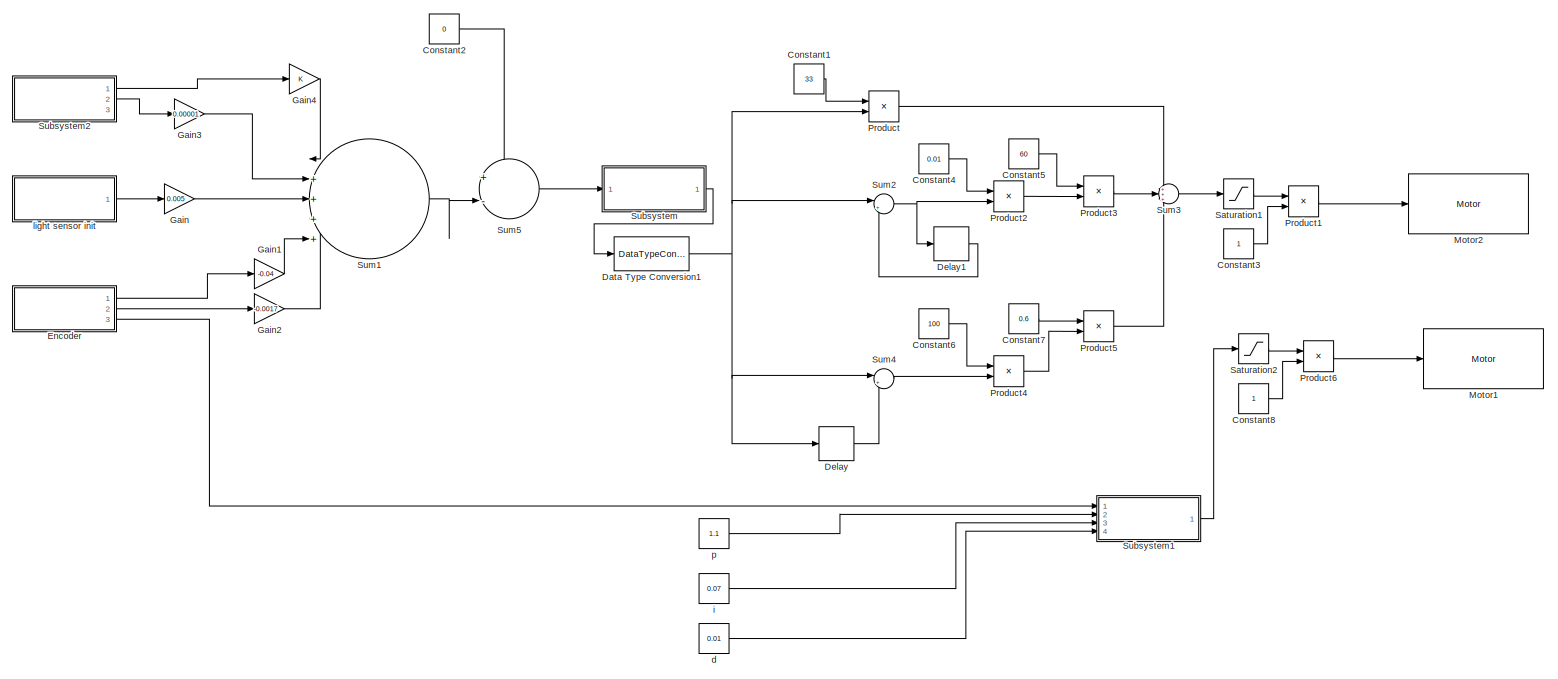
[diagram: root canvas - part 1/1, most of the canvas]
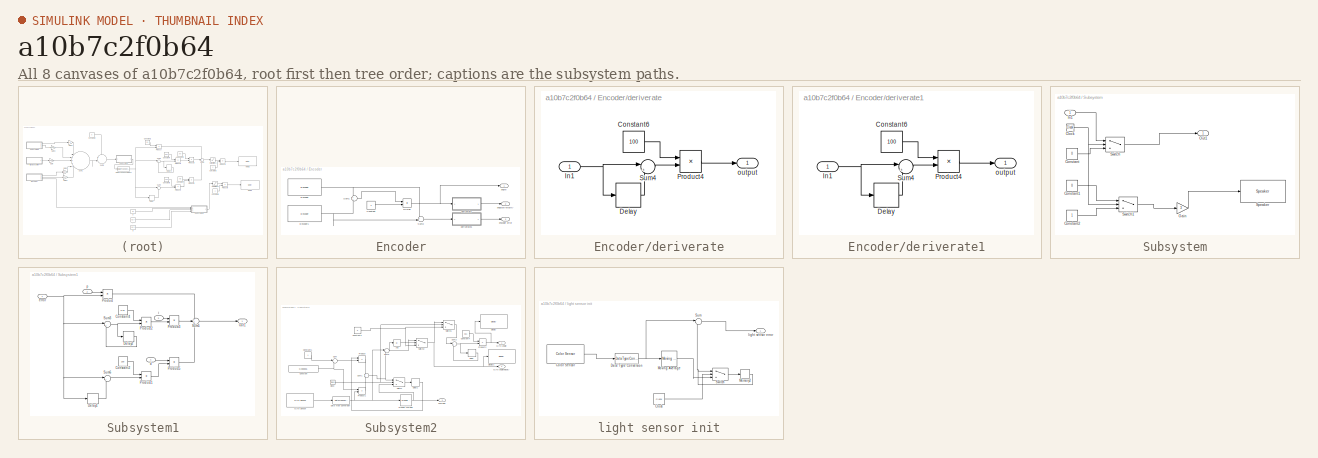
[diagram: thumbnail index - all 8 canvases of the model, root first then tree order]
MODEL slx_a10b7c2f0b64
KIND model
CONFIG AbsTol = auto
CONFIG EnableMultiTasking = on
CONFIG FixedStep = auto
CONFIG MaxStep = auto
CONFIG MinStep = auto
CONFIG RelTol = 1e-3
CONFIG SampleTimeConstraint = Unconstrained
CONFIG Solver = FixedStepAuto
CONFIG SolverName = FixedStepAuto
CONFIG StartTime = 0.0
CONFIG StopTime = 10.0
BLOCK [Constant] Constant1
  Value = 33
BLOCK [Constant] Constant2
  Value = 0
BLOCK [Constant] Constant3
BLOCK [Constant] Constant4
  Value = 0.01
BLOCK [Constant] Constant5
  Value = 60
BLOCK [Constant] Constant6
  Value = 100
BLOCK [Constant] Constant7
  Value = 0.6
BLOCK [Constant] Constant8
BLOCK [DataTypeConversion] Data Type Conversion1
  OutDataTypeStr = double
  RndMeth = Floor
  SaturateOnIntegerOverflow = off
BLOCK [Delay] Delay
  DelayLength = 1
  InitialCondition = 0
  InputPortMap = u0
  Ports = [1, 1]
BLOCK [Delay] Delay1
  DelayLength = 1
  InitialCondition = 0
  InputPortMap = u0
  Ports = [1, 1]
BLOCK [SubSystem] Encoder
  Ports = [0, 3]
  RequestExecContextInheritance = off
BLOCK [Constant] Encoder/Constant
  Value = 2
BLOCK [Product] Encoder/Divide
  InputSameDT = off
  Inputs = */
  OutDataTypeStr = Inherit: Inherit via internal rule
  Ports = [2, 1]
  RndMeth = Floor
  SaturateOnIntegerOverflow = off
BLOCK [Reference] Encoder/Encoder  REF=legoev3lib/Encoder
  Ports = [1, 1]
  SourceBlock = legoev3lib/Encoder
  SourceProductBaseCode = LEGOEV3
  SourceProductName = Simulink Support Package for LEGO MINDSTORMS EV3 Hardware
  SourceType = LEGO MINDSTORMS EV3 Encoder
BLOCK [Reference] Encoder/Encoder1  REF=legoev3lib/Encoder
  Ports = [1, 1]
  SourceBlock = legoev3lib/Encoder
  SourceProductBaseCode = LEGOEV3
  SourceProductName = Simulink Support Package for LEGO MINDSTORMS EV3 Hardware
  SourceType = LEGO MINDSTORMS EV3 Encoder
BLOCK [Sum] Encoder/Sum1
  IconShape = round
  InputSameDT = off
  OutDataTypeStr = Inherit: Inherit via internal rule
  Ports = [2, 1]
  SaturateOnIntegerOverflow = off
BLOCK [Sum] Encoder/Sum2
  IconShape = round
  InputSameDT = off
  Inputs = +-
  OutDataTypeStr = Inherit: Inherit via internal rule
  Ports = [2, 1]
  SaturateOnIntegerOverflow = off
BLOCK [Outport] Encoder/angle
  IconDisplay = Port number
BLOCK [Outport] Encoder/angularVelocity
  IconDisplay = Port number
  Port = 2
BLOCK [SubSystem] Encoder/deriverate
  Ports = [1, 1]
  RequestExecContextInheritance = off
BLOCK [Constant] Encoder/deriverate/Constant6
  Value = 100
BLOCK [Delay] Encoder/deriverate/Delay
  DelayLength = 1
  InitialCondition = 0
  InputPortMap = u0
  Ports = [1, 1]
BLOCK [Inport] Encoder/deriverate/In1
  IconDisplay = Port number
BLOCK [Product] Encoder/deriverate/Product4
  InputSameDT = off
  OutDataTypeStr = Inherit: Inherit via internal rule
  Ports = [2, 1]
  RndMeth = Floor
  SaturateOnIntegerOverflow = off
BLOCK [Sum] Encoder/deriverate/Sum4
  IconShape = round
  InputSameDT = off
  Inputs = |+-
  OutDataTypeStr = Inherit: Inherit via internal rule
  Ports = [2, 1]
  SaturateOnIntegerOverflow = off
BLOCK [Outport] Encoder/deriverate/output
  IconDisplay = Port number
BLOCK [SubSystem] Encoder/deriverate1
  Ports = [1, 1]
  RequestExecContextInheritance = off
BLOCK [Constant] Encoder/deriverate1/Constant6
  Value = 100
BLOCK [Delay] Encoder/deriverate1/Delay
  DelayLength = 1
  InitialCondition = 0
  InputPortMap = u0
  Ports = [1, 1]
BLOCK [Inport] Encoder/deriverate1/In1
  IconDisplay = Port number
BLOCK [Product] Encoder/deriverate1/Product4
  InputSameDT = off
  OutDataTypeStr = Inherit: Inherit via internal rule
  Ports = [2, 1]
  RndMeth = Floor
  SaturateOnIntegerOverflow = off
BLOCK [Sum] Encoder/deriverate1/Sum4
  IconShape = round
  InputSameDT = off
  Inputs = |+-
  OutDataTypeStr = Inherit: Inherit via internal rule
  Ports = [2, 1]
  SaturateOnIntegerOverflow = off
BLOCK [Outport] Encoder/deriverate1/output
  IconDisplay = Port number
BLOCK [Outport] Encoder/encoder error
  IconDisplay = Port number
  Port = 3
BLOCK [Gain] Gain
  Gain = 0.005
  OutDataTypeStr = Inherit: Inherit via internal rule
  ParamDataTypeStr = Inherit: Inherit via internal rule
  SaturateOnIntegerOverflow = off
BLOCK [Gain] Gain1
  Gain = -0.04
  OutDataTypeStr = Inherit: Inherit via internal rule
  ParamDataTypeStr = Inherit: Inherit via internal rule
  SaturateOnIntegerOverflow = off
BLOCK [Gain] Gain2
  Gain = -0.0017
  OutDataTypeStr = Inherit: Inherit via internal rule
  ParamDataTypeStr = Inherit: Inherit via internal rule
  SaturateOnIntegerOverflow = off
BLOCK [Gain] Gain3
  Gain = 0.00001
  OutDataTypeStr = Inherit: Inherit via internal rule
  ParamDataTypeStr = Inherit: Inherit via internal rule
  SaturateOnIntegerOverflow = off
BLOCK [Gain] Gain4
  OutDataTypeStr = Inherit: Inherit via internal rule
  ParamDataTypeStr = Inherit: Inherit via internal rule
  SaturateOnIntegerOverflow = off
BLOCK [Reference] Motor1  REF=legoev3lib/Motor
  Ports = [1]
  SourceBlock = legoev3lib/Motor
  SourceProductBaseCode = LEGOEV3
  SourceProductName = Simulink Support Package for LEGO MINDSTORMS EV3 Hardware
  SourceType = LEGO MINDSTORMS EV3 Motor
BLOCK [Reference] Motor2  REF=legoev3lib/Motor
  Ports = [1]
  SourceBlock = legoev3lib/Motor
  SourceProductBaseCode = LEGOEV3
  SourceProductName = Simulink Support Package for LEGO MINDSTORMS EV3 Hardware
  SourceType = LEGO MINDSTORMS EV3 Motor
BLOCK [Product] Product
  InputSameDT = off
  OutDataTypeStr = Inherit: Inherit via internal rule
  Ports = [2, 1]
  RndMeth = Floor
  SaturateOnIntegerOverflow = off
BLOCK [Product] Product1
  InputSameDT = off
  OutDataTypeStr = Inherit: Inherit via internal rule
  Ports = [2, 1]
  RndMeth = Floor
  SaturateOnIntegerOverflow = off
BLOCK [Product] Product2
  InputSameDT = off
  OutDataTypeStr = Inherit: Inherit via internal rule
  Ports = [2, 1]
  RndMeth = Floor
  SaturateOnIntegerOverflow = off
BLOCK [Product] Product3
  InputSameDT = off
  OutDataTypeStr = Inherit: Inherit via internal rule
  Ports = [2, 1]
  RndMeth = Floor
  SaturateOnIntegerOverflow = off
BLOCK [Product] Product4
  InputSameDT = off
  OutDataTypeStr = Inherit: Inherit via internal rule
  Ports = [2, 1]
  RndMeth = Floor
  SaturateOnIntegerOverflow = off
BLOCK [Product] Product5
  InputSameDT = off
  OutDataTypeStr = Inherit: Inherit via internal rule
  Ports = [2, 1]
  RndMeth = Floor
  SaturateOnIntegerOverflow = off
BLOCK [Product] Product6
  InputSameDT = off
  OutDataTypeStr = Inherit: Inherit via internal rule
  Ports = [2, 1]
  RndMeth = Floor
  SaturateOnIntegerOverflow = off
BLOCK [Saturate] Saturation1
  InputPortMap = u0
  LowerLimit = -100
  Ports = [1, 1]
  UpperLimit = 100
BLOCK [Saturate] Saturation2
  InputPortMap = u0
  LowerLimit = -100
  Ports = [1, 1]
  UpperLimit = 100
BLOCK [SubSystem] Subsystem
  Ports = [1, 1]
  RequestExecContextInheritance = off
BLOCK [Clock] Subsystem/Clock
BLOCK [Constant] Subsystem/Constant
  Value = 0
BLOCK [Constant] Subsystem/Constant1
  Value = 0
BLOCK [Constant] Subsystem/Constant2
BLOCK [Gain] Subsystem/Gain
  Gain = 3
  OutDataTypeStr = Inherit: Inherit via internal rule
  ParamDataTypeStr = Inherit: Inherit via internal rule
  SaturateOnIntegerOverflow = off
BLOCK [Inport] Subsystem/In1
  IconDisplay = Port number
BLOCK [Outport] Subsystem/Out1
  IconDisplay = Port number
BLOCK [Reference] Subsystem/Speaker  REF=legoev3lib/Speaker
  Ports = [1]
  SourceBlock = legoev3lib/Speaker
  SourceProductBaseCode = LEGOEV3
  SourceProductName = Simulink Support Package for LEGO MINDSTORMS EV3 Hardware
  SourceType = LEGO MINDSTORMS EV3 Speaker
BLOCK [Switch] Subsystem/Switch
  Criteria = u2 > Threshold
  InputSameDT = off
  SaturateOnIntegerOverflow = off
  Threshold = 5
BLOCK [Switch] Subsystem/Switch1
  Criteria = u2 > Threshold
  InputSameDT = off
  SaturateOnIntegerOverflow = off
  Threshold = 5
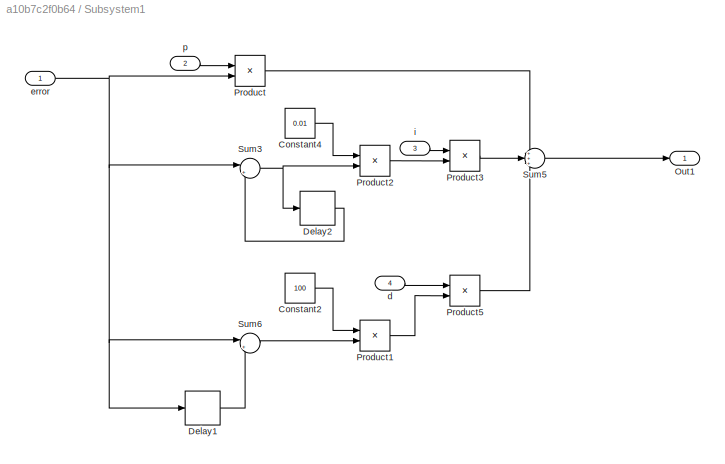
BLOCK [SubSystem] Subsystem1
  Ports = [4, 1]
  RequestExecContextInheritance = off
BLOCK [Constant] Subsystem1/Constant2
  Value = 100
BLOCK [Constant] Subsystem1/Constant4
  Value = 0.01
BLOCK [Delay] Subsystem1/Delay1
  DelayLength = 1
  InitialCondition = 0
  InputPortMap = u0
  Ports = [1, 1]
BLOCK [Delay] Subsystem1/Delay2
  DelayLength = 1
  InitialCondition = 0
  InputPortMap = u0
  Ports = [1, 1]
BLOCK [Outport] Subsystem1/Out1
  IconDisplay = Port number
BLOCK [Product] Subsystem1/Product
  InputSameDT = off
  OutDataTypeStr = Inherit: Inherit via internal rule
  Ports = [2, 1]
  RndMeth = Floor
  SaturateOnIntegerOverflow = off
BLOCK [Product] Subsystem1/Product1
  InputSameDT = off
  OutDataTypeStr = Inherit: Inherit via internal rule
  Ports = [2, 1]
  RndMeth = Floor
  SaturateOnIntegerOverflow = off
BLOCK [Product] Subsystem1/Product2
  InputSameDT = off
  OutDataTypeStr = Inherit: Inherit via internal rule
  Ports = [2, 1]
  RndMeth = Floor
  SaturateOnIntegerOverflow = off
BLOCK [Product] Subsystem1/Product3
  InputSameDT = off
  OutDataTypeStr = Inherit: Inherit via internal rule
  Ports = [2, 1]
  RndMeth = Floor
  SaturateOnIntegerOverflow = off
BLOCK [Product] Subsystem1/Product5
  InputSameDT = off
  OutDataTypeStr = Inherit: Inherit via internal rule
  Ports = [2, 1]
  RndMeth = Floor
  SaturateOnIntegerOverflow = off
BLOCK [Sum] Subsystem1/Sum3
  IconShape = round
  InputSameDT = off
  Inputs = |++
  OutDataTypeStr = Inherit: Inherit via internal rule
  Ports = [2, 1]
  SaturateOnIntegerOverflow = off
BLOCK [Sum] Subsystem1/Sum5
  IconShape = round
  InputSameDT = off
  Inputs = +++
  OutDataTypeStr = Inherit: Inherit via internal rule
  Ports = [3, 1]
  SaturateOnIntegerOverflow = off
BLOCK [Sum] Subsystem1/Sum6
  IconShape = round
  InputSameDT = off
  Inputs = |+-
  OutDataTypeStr = Inherit: Inherit via internal rule
  Ports = [2, 1]
  SaturateOnIntegerOverflow = off
BLOCK [Inport] Subsystem1/d
  IconDisplay = Port number
  Port = 4
BLOCK [Inport] Subsystem1/error
  IconDisplay = Port number
BLOCK [Inport] Subsystem1/i
  IconDisplay = Port number
  Port = 3
BLOCK [Inport] Subsystem1/p
  IconDisplay = Port number
  Port = 2
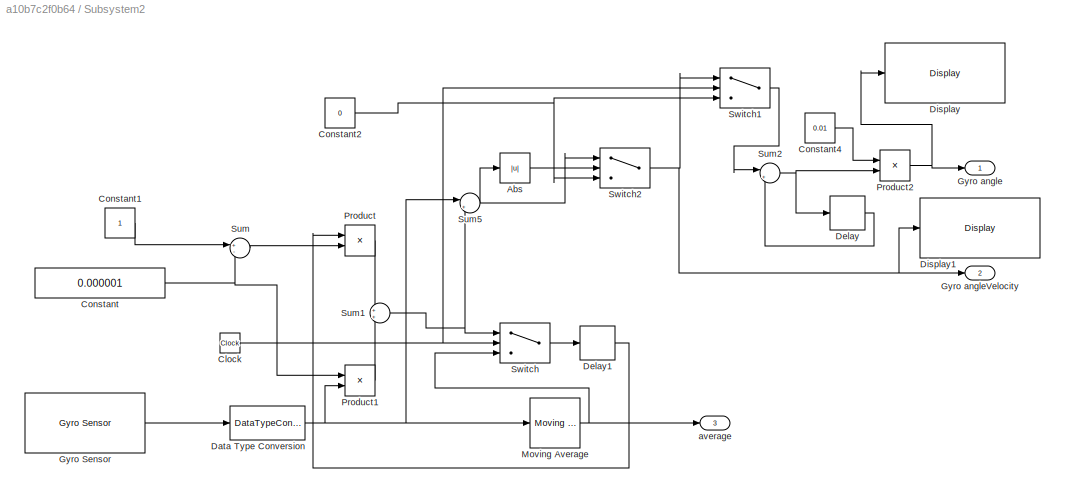
BLOCK [SubSystem] Subsystem2
  Ports = [0, 3]
  RequestExecContextInheritance = off
BLOCK [Abs] Subsystem2/Abs
  SaturateOnIntegerOverflow = off
BLOCK [Clock] Subsystem2/Clock
BLOCK [Constant] Subsystem2/Constant
  Value = 0.000001
BLOCK [Constant] Subsystem2/Constant1
BLOCK [Constant] Subsystem2/Constant2
  Value = 0
BLOCK [Constant] Subsystem2/Constant4
  Value = 0.01
BLOCK [DataTypeConversion] Subsystem2/Data Type Conversion
  OutDataTypeStr = double
  RndMeth = Floor
  SaturateOnIntegerOverflow = off
BLOCK [Delay] Subsystem2/Delay
  DelayLength = 1
  InitialCondition = 0
  InputPortMap = u0
  Ports = [1, 1]
BLOCK [Delay] Subsystem2/Delay1
  DelayLength = 1
  InitialCondition = 0
  InputPortMap = u0
  Ports = [1, 1]
BLOCK [Reference] Subsystem2/Display  REF=legoev3lib/Display
  Ports = [1]
  SourceBlock = legoev3lib/Display
  SourceProductBaseCode = LEGOEV3
  SourceProductName = Simulink Support Package for LEGO MINDSTORMS EV3 Hardware
  SourceType = LEGO MINDSTORMS EV3 Display
BLOCK [Reference] Subsystem2/Display1  REF=legoev3lib/Display
  Ports = [1]
  SourceBlock = legoev3lib/Display
  SourceProductBaseCode = LEGOEV3
  SourceProductName = Simulink Support Package for LEGO MINDSTORMS EV3 Hardware
  SourceType = LEGO MINDSTORMS EV3 Display
BLOCK [Reference] Subsystem2/Gyro Sensor  REF=legoev3lib/Gyro Sensor
  Ports = [0, 1]
  SourceBlock = legoev3lib/Gyro Sensor
  SourceProductBaseCode = LEGOEV3
  SourceProductName = Simulink Support Package for LEGO MINDSTORMS EV3 Hardware
  SourceType = LEGO MINDSTORMS EV3 Gyro Sensor
BLOCK [Outport] Subsystem2/Gyro angle
  IconDisplay = Port number
BLOCK [Outport] Subsystem2/Gyro angleVelocity
  IconDisplay = Port number
  Port = 2
BLOCK [Reference] Subsystem2/Moving Average  REF=dspstat3/Moving
Average
  Ports = [1, 1]
  SourceBlock = dspstat3/Moving\nAverage
  SourceProductBaseCode = DS
  SourceProductName = DSP System Toolbox
  SourceType = dsp.simulink.MovingAverage
BLOCK [Product] Subsystem2/Product
  InputSameDT = off
  OutDataTypeStr = Inherit: Inherit via internal rule
  Ports = [2, 1]
  RndMeth = Floor
  SaturateOnIntegerOverflow = off
BLOCK [Product] Subsystem2/Product1
  InputSameDT = off
  OutDataTypeStr = Inherit: Inherit via internal rule
  Ports = [2, 1]
  RndMeth = Floor
  SaturateOnIntegerOverflow = off
BLOCK [Product] Subsystem2/Product2
  InputSameDT = off
  OutDataTypeStr = Inherit: Inherit via internal rule
  Ports = [2, 1]
  RndMeth = Floor
  SaturateOnIntegerOverflow = off
BLOCK [Sum] Subsystem2/Sum
  IconShape = round
  InputSameDT = off
  Inputs = +-
  OutDataTypeStr = Inherit: Inherit via internal rule
  Ports = [2, 1]
  SaturateOnIntegerOverflow = off
BLOCK [Sum] Subsystem2/Sum1
  IconShape = round
  InputSameDT = off
  OutDataTypeStr = Inherit: Inherit via internal rule
  Ports = [2, 1]
  SaturateOnIntegerOverflow = off
BLOCK [Sum] Subsystem2/Sum2
  IconShape = round
  InputSameDT = off
  Inputs = |++
  OutDataTypeStr = Inherit: Inherit via internal rule
  Ports = [2, 1]
  SaturateOnIntegerOverflow = off
BLOCK [Sum] Subsystem2/Sum5
  IconShape = round
  InputSameDT = off
  Inputs = |+-
  OutDataTypeStr = Inherit: Inherit via internal rule
  Ports = [2, 1]
  SaturateOnIntegerOverflow = off
BLOCK [Switch] Subsystem2/Switch
  Criteria = u2 > Threshold
  InputSameDT = off
  SaturateOnIntegerOverflow = off
  Threshold = 5
BLOCK [Switch] Subsystem2/Switch1
  Criteria = u2 > Threshold
  InputSameDT = off
  SaturateOnIntegerOverflow = off
  Threshold = 5
BLOCK [Switch] Subsystem2/Switch2
  Criteria = u2 > Threshold
  InputSameDT = off
  SaturateOnIntegerOverflow = off
  Threshold = 1.5
BLOCK [Outport] Subsystem2/average
  IconDisplay = Port number
  Port = 3
BLOCK [Sum] Sum1
  IconShape = round
  InputSameDT = off
  Inputs = |+++++
  OutDataTypeStr = Inherit: Inherit via internal rule
  Ports = [5, 1]
  SaturateOnIntegerOverflow = off
BLOCK [Sum] Sum2
  IconShape = round
  InputSameDT = off
  Inputs = |++
  OutDataTypeStr = Inherit: Inherit via internal rule
  Ports = [2, 1]
  SaturateOnIntegerOverflow = off
BLOCK [Sum] Sum3
  IconShape = round
  InputSameDT = off
  Inputs = +++
  OutDataTypeStr = Inherit: Inherit via internal rule
  Ports = [3, 1]
  SaturateOnIntegerOverflow = off
BLOCK [Sum] Sum4
  IconShape = round
  InputSameDT = off
  Inputs = |+-
  OutDataTypeStr = Inherit: Inherit via internal rule
  Ports = [2, 1]
  SaturateOnIntegerOverflow = off
BLOCK [Sum] Sum5
  IconShape = round
  InputSameDT = off
  Inputs = +-
  OutDataTypeStr = Inherit: Inherit via internal rule
  Ports = [2, 1]
  SaturateOnIntegerOverflow = off
BLOCK [Constant] d
  Value = 0.01
BLOCK [Constant] i
  Value = 0.07
BLOCK [SubSystem] light sensor init
  Ports = [0, 1]
  RequestExecContextInheritance = off
BLOCK [Clock] light sensor init/Clock
BLOCK [Reference] light sensor init/Color Sensor  REF=legoev3lib/Color Sensor
  Ports = [0, 1]
  SourceBlock = legoev3lib/Color Sensor
  SourceProductBaseCode = LEGOEV3
  SourceProductName = Simulink Support Package for LEGO MINDSTORMS EV3 Hardware
  SourceType = LEGO MINDSTORMS EV3 Color Sensor
BLOCK [DataTypeConversion] light sensor init/Data Type Conversion
  OutDataTypeStr = double
  RndMeth = Floor
  SaturateOnIntegerOverflow = off
BLOCK [Memory] light sensor init/Memory2
BLOCK [Reference] light sensor init/Moving Average  REF=dspstat3/Moving
Average
  Ports = [1, 1]
  SourceBlock = dspstat3/Moving\nAverage
  SourceProductBaseCode = DS
  SourceProductName = DSP System Toolbox
  SourceType = dsp.simulink.MovingAverage
BLOCK [Sum] light sensor init/Sum
  IconShape = round
  InputSameDT = off
  Inputs = |-+
  OutDataTypeStr = Inherit: Inherit via internal rule
  Ports = [2, 1]
  SaturateOnIntegerOverflow = off
BLOCK [Switch] light sensor init/Switch
  Criteria = u2 > Threshold
  InputSameDT = off
  SaturateOnIntegerOverflow = off
  Threshold = 5
BLOCK [Outport] light sensor init/light sensor error
  IconDisplay = Port number
BLOCK [Constant] p
  Value = 1.1
LINE Constant1:1 -> Product:1
LINE Constant2:1 -> Sum5:1
LINE Constant3:1 -> Product1:2
LINE Constant4:1 -> Product2:1
LINE Constant5:1 -> Product3:1
LINE Constant6:1 -> Product4:1
LINE Constant7:1 -> Product5:1
LINE Constant8:1 -> Product6:2
NET Data Type Conversion1:1 -> Delay:1, Product:2, Sum2:1, Sum4:1
LINE Delay1:1 -> Sum2:2
LINE Delay:1 -> Sum4:2
LINE Encoder/Constant:1 -> Encoder/Divide:2
NET Encoder/Divide:1 -> Encoder/angle:1, Encoder/deriverate:1
NET Encoder/Encoder1:1 -> Encoder/Sum1:2, Encoder/Sum2:2
NET Encoder/Encoder:1 -> Encoder/Sum1:1, Encoder/Sum2:1
LINE Encoder/Sum1:1 -> Encoder/Divide:1
LINE Encoder/Sum2:1 -> Encoder/deriverate1:1
LINE Encoder/deriverate/Constant6:1 -> Encoder/deriverate/Product4:1
LINE Encoder/deriverate/Delay:1 -> Encoder/deriverate/Sum4:2
NET Encoder/deriverate/In1:1 -> Encoder/deriverate/Delay:1, Encoder/deriverate/Sum4:1
LINE Encoder/deriverate/Product4:1 -> Encoder/deriverate/output:1
LINE Encoder/deriverate/Sum4:1 -> Encoder/deriverate/Product4:2
LINE Encoder/deriverate1/Constant6:1 -> Encoder/deriverate1/Product4:1
LINE Encoder/deriverate1/Delay:1 -> Encoder/deriverate1/Sum4:2
NET Encoder/deriverate1/In1:1 -> Encoder/deriverate1/Delay:1, Encoder/deriverate1/Sum4:1
LINE Encoder/deriverate1/Product4:1 -> Encoder/deriverate1/output:1
LINE Encoder/deriverate1/Sum4:1 -> Encoder/deriverate1/Product4:2
LINE Encoder/deriverate1:1 -> Encoder/encoder error:1
LINE Encoder/deriverate:1 -> Encoder/angularVelocity:1
LINE Encoder:1 -> Gain1:1
LINE Encoder:2 -> Gain2:1
LINE Encoder:3 -> Subsystem1:1
LINE Gain1:1 -> Sum1:5
LINE Gain2:1 -> Sum1:4
LINE Gain3:1 -> Sum1:2
LINE Gain4:1 -> Sum1:1
LINE Gain:1 -> Sum1:3
LINE Product1:1 -> Motor2:1
LINE Product2:1 -> Product3:2
LINE Product3:1 -> Sum3:2
LINE Product4:1 -> Product5:2
LINE Product5:1 -> Sum3:3
LINE Product6:1 -> Motor1:1
LINE Product:1 -> Sum3:1
LINE Saturation1:1 -> Product1:1
LINE Saturation2:1 -> Product6:1
NET Subsystem/Clock:1 -> Subsystem/Switch1:2, Subsystem/Switch:2
LINE Subsystem/Constant1:1 -> Subsystem/Switch1:1
LINE Subsystem/Constant2:1 -> Subsystem/Switch1:3
LINE Subsystem/Constant:1 -> Subsystem/Switch:3
LINE Subsystem/Gain:1 -> Subsystem/Speaker:1
LINE Subsystem/In1:1 -> Subsystem/Switch:1
LINE Subsystem/Switch1:1 -> Subsystem/Gain:1
LINE Subsystem/Switch:1 -> Subsystem/Out1:1
LINE Subsystem1/Constant2:1 -> Subsystem1/Product1:1
LINE Subsystem1/Constant4:1 -> Subsystem1/Product2:1
LINE Subsystem1/Delay1:1 -> Subsystem1/Sum6:2
LINE Subsystem1/Delay2:1 -> Subsystem1/Sum3:2
LINE Subsystem1/Product1:1 -> Subsystem1/Product5:2
LINE Subsystem1/Product2:1 -> Subsystem1/Product3:2
LINE Subsystem1/Product3:1 -> Subsystem1/Sum5:2
LINE Subsystem1/Product5:1 -> Subsystem1/Sum5:3
LINE Subsystem1/Product:1 -> Subsystem1/Sum5:1
NET Subsystem1/Sum3:1 -> Subsystem1/Delay2:1, Subsystem1/Product2:2
LINE Subsystem1/Sum5:1 -> Subsystem1/Out1:1
LINE Subsystem1/Sum6:1 -> Subsystem1/Product1:2
LINE Subsystem1/d:1 -> Subsystem1/Product5:1
NET Subsystem1/error:1 -> Subsystem1/Delay1:1, Subsystem1/Product:2, Subsystem1/Sum3:1, Subsystem1/Sum6:1
LINE Subsystem1/i:1 -> Subsystem1/Product3:1
LINE Subsystem1/p:1 -> Subsystem1/Product:1
LINE Subsystem1:1 -> Saturation2:1
LINE Subsystem2/Abs:1 -> Subsystem2/Switch2:2
NET Subsystem2/Clock:1 -> Subsystem2/Switch1:2, Subsystem2/Switch:2
LINE Subsystem2/Constant1:1 -> Subsystem2/Sum:1
NET Subsystem2/Constant2:1 -> Subsystem2/Switch1:3, Subsystem2/Switch2:3
LINE Subsystem2/Constant4:1 -> Subsystem2/Product2:1
NET Subsystem2/Constant:1 -> Subsystem2/Product1:1, Subsystem2/Sum:2
NET Subsystem2/Data Type Conversion:1 -> Subsystem2/Moving Average:1, Subsystem2/Product1:2, Subsystem2/Sum5:1
LINE Subsystem2/Delay1:1 -> Subsystem2/Product:1
LINE Subsystem2/Delay:1 -> Subsystem2/Sum2:2
LINE Subsystem2/Gyro Sensor:1 -> Subsystem2/Data Type Conversion:1
NET Subsystem2/Moving Average:1 -> Subsystem2/Switch:3, Subsystem2/average:1
LINE Subsystem2/Product1:1 -> Subsystem2/Sum1:2
NET Subsystem2/Product2:1 -> Subsystem2/Display:1, Subsystem2/Gyro angle:1
LINE Subsystem2/Product:1 -> Subsystem2/Sum1:1
NET Subsystem2/Sum1:1 -> Subsystem2/Sum5:2, Subsystem2/Switch:1
NET Subsystem2/Sum2:1 -> Subsystem2/Delay:1, Subsystem2/Product2:2
NET Subsystem2/Sum5:1 -> Subsystem2/Abs:1, Subsystem2/Switch2:1
LINE Subsystem2/Sum:1 -> Subsystem2/Product:2
LINE Subsystem2/Switch1:1 -> Subsystem2/Sum2:1
NET Subsystem2/Switch2:1 -> Subsystem2/Display1:1, Subsystem2/Gyro angleVelocity:1, Subsystem2/Switch1:1
LINE Subsystem2/Switch:1 -> Subsystem2/Delay1:1
LINE Subsystem2:1 -> Gain4:1
LINE Subsystem2:2 -> Gain3:1
LINE Subsystem:1 -> Data Type Conversion1:1
LINE Sum1:1 -> Sum5:2
NET Sum2:1 -> Delay1:1, Product2:2
LINE Sum3:1 -> Saturation1:1
LINE Sum4:1 -> Product4:2
LINE Sum5:1 -> Subsystem:1
LINE d:1 -> Subsystem1:4
LINE i:1 -> Subsystem1:3
LINE light sensor init/Clock:1 -> light sensor init/Switch:2
LINE light sensor init/Color Sensor:1 -> light sensor init/Data Type Conversion:1
NET light sensor init/Data Type Conversion:1 -> light sensor init/Moving Average:1, light sensor init/Sum:1
NET light sensor init/Memory2:1 -> light sensor init/Sum:2, light sensor init/Switch:1
LINE light sensor init/Moving Average:1 -> light sensor init/Switch:3
LINE light sensor init/Sum:1 -> light sensor init/light sensor error:1
LINE light sensor init/Switch:1 -> light sensor init/Memory2:1
LINE light sensor init:1 -> Gain:1
LINE p:1 -> Subsystem1:2
note: NET lines group one-source signal fan-out (src -> all destinations, sorted); 1:1 wires keep LINE
